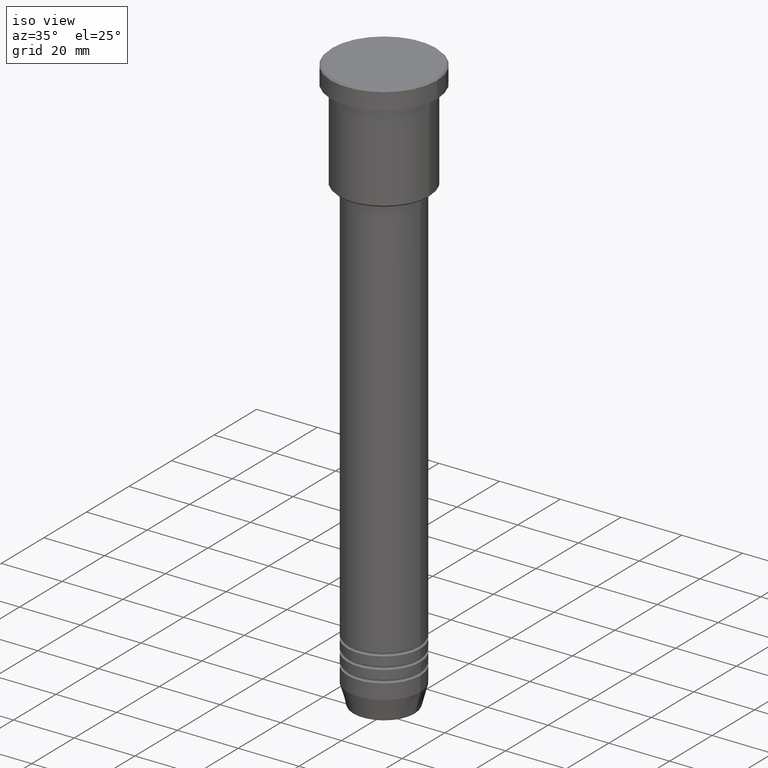
[diagram: clean part render]
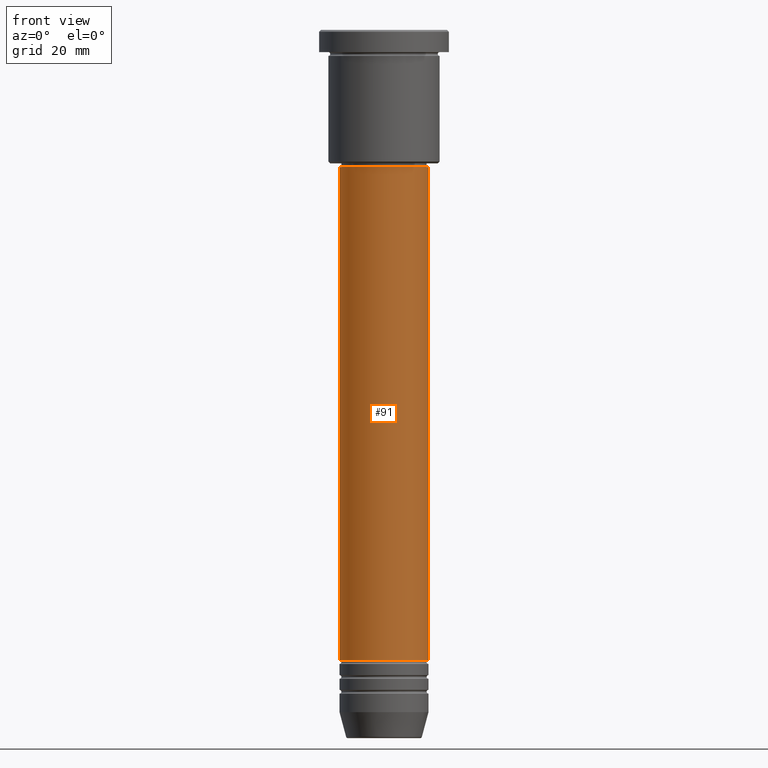
[diagram: tour spotlight — one face highlighted and labeled with its STEP entity id]
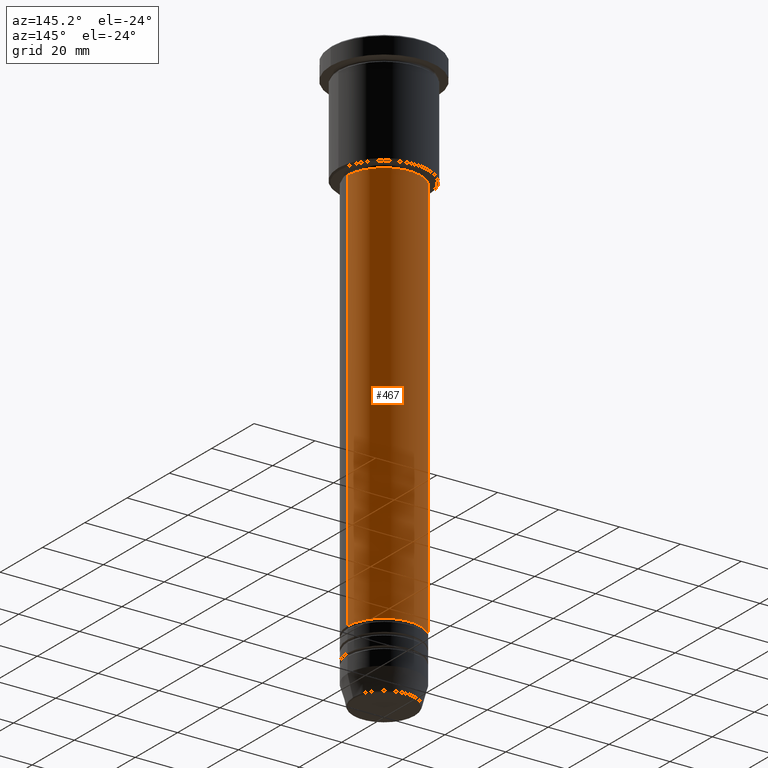
[diagram: tour spotlight — one face highlighted and labeled with its STEP entity id]
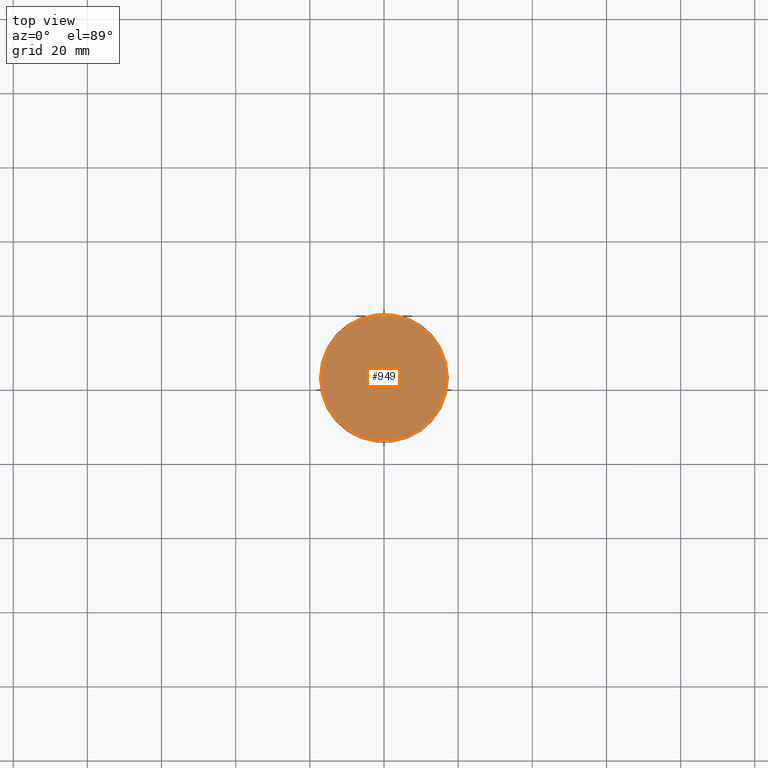
[diagram: tour spotlight — one face highlighted and labeled with its STEP entity id]
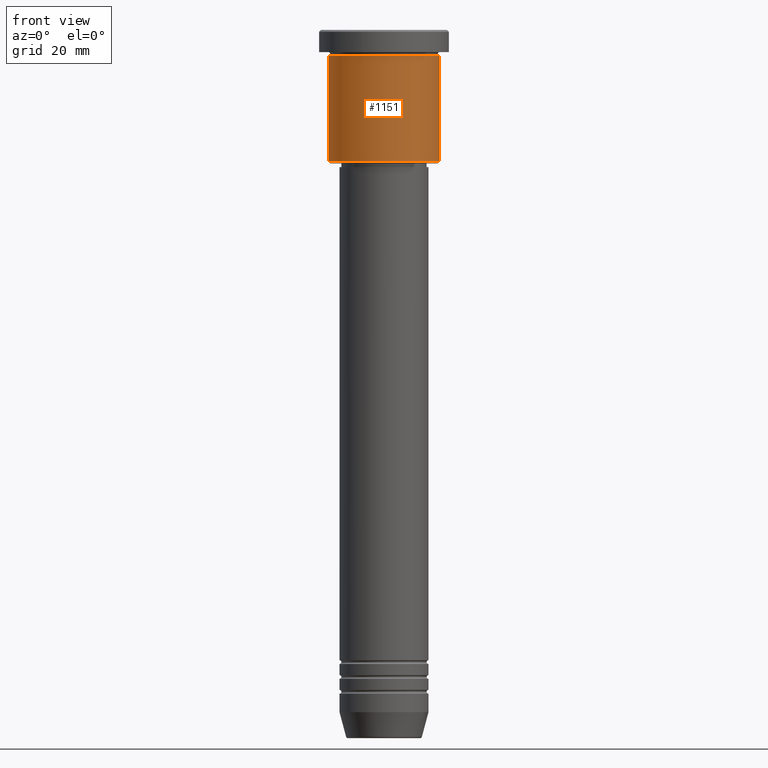
[diagram: tour spotlight — one face highlighted and labeled with its STEP entity id]
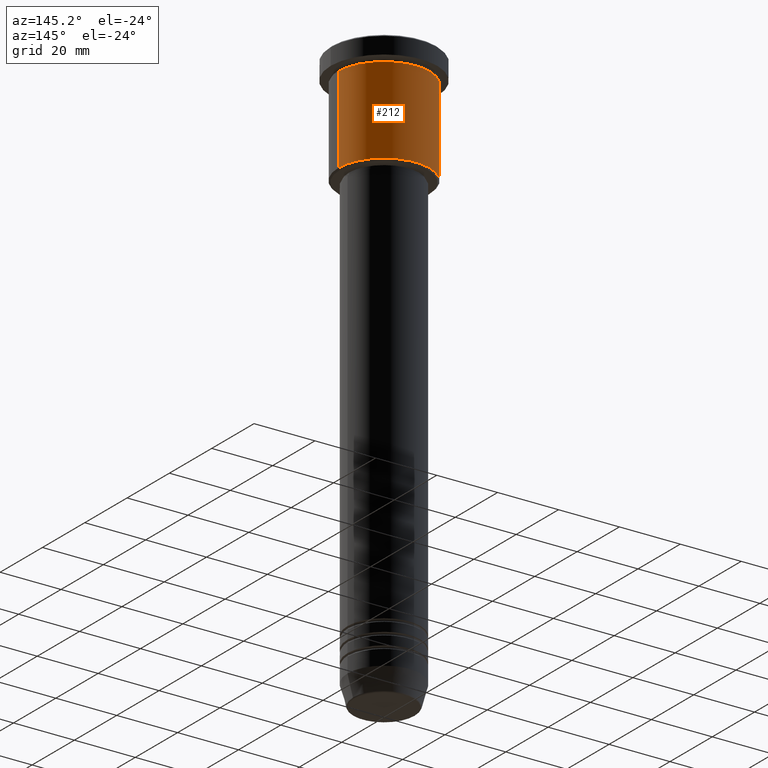
[diagram: tour spotlight — one face highlighted and labeled with its STEP entity id]
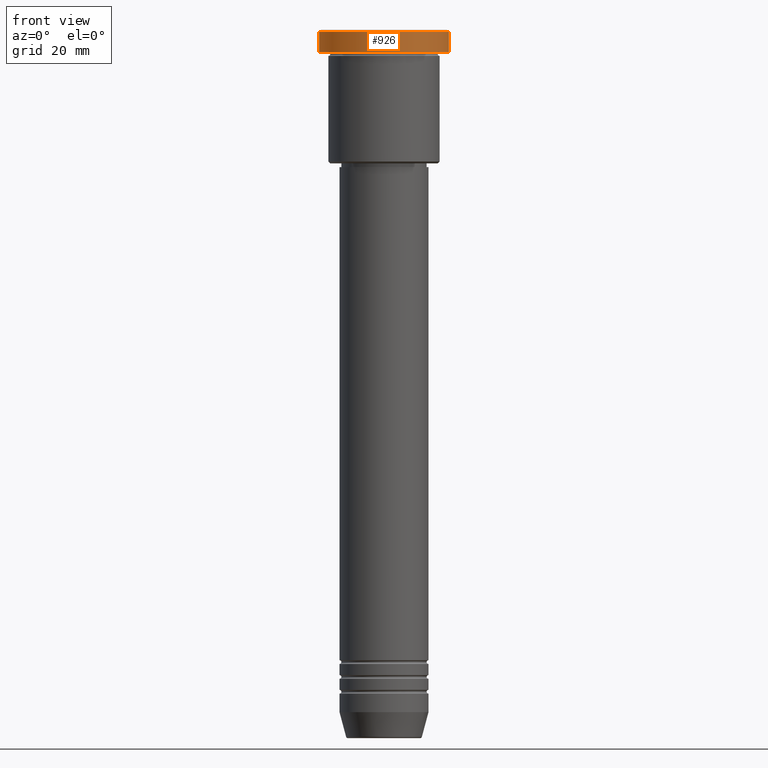
[diagram: tour spotlight — one face highlighted and labeled with its STEP entity id]
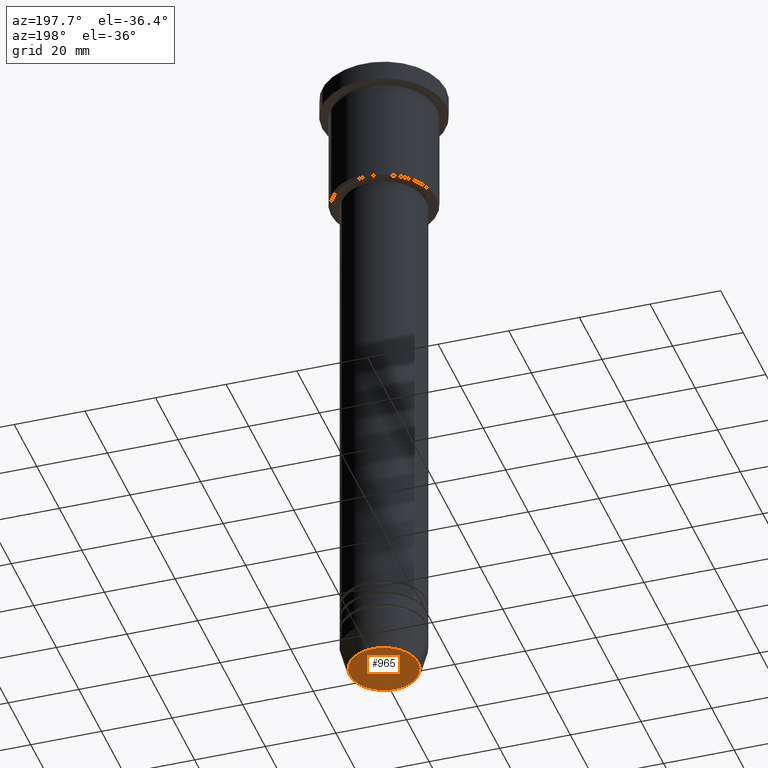
[diagram: tour spotlight — one face highlighted and labeled with its STEP entity id]
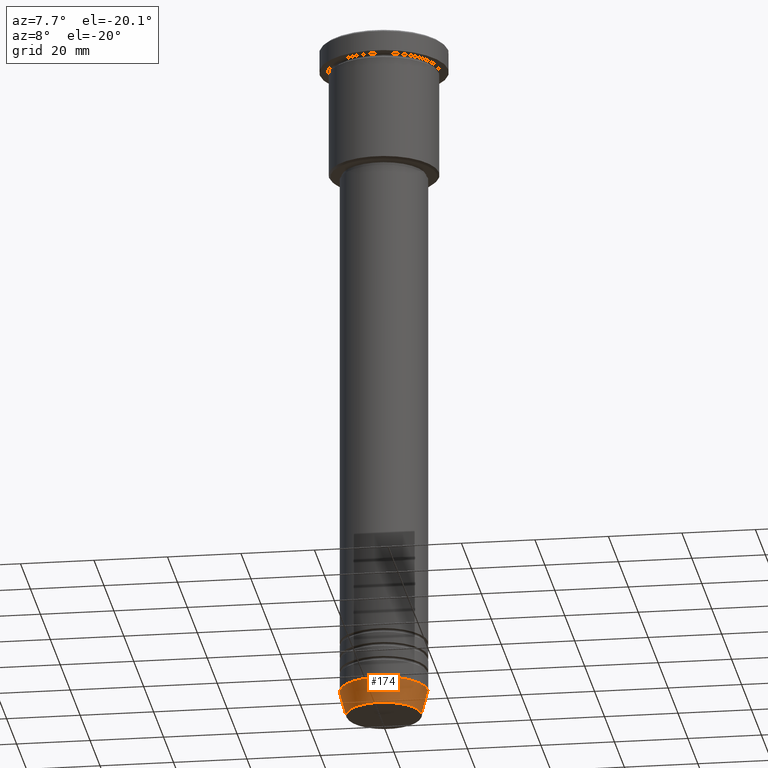
[diagram: tour spotlight — one face highlighted and labeled with its STEP entity id]
A machine part: a face-by-face anatomy tour. The part has 43 B-rep faces; the first image is the clean iso view, then the 8 largest visible faces are spotlighted one at a time (largest first), each with its STEP entity span.

Face 1 — front view, entity #91. In plain terms, the highlighted cylindrical surface (partial cylindrical patch) has radius 12 mm, axis along (-0, -0, 1).
Definition (entity closure, byte-faithful):
#15 = AXIS2_PLACEMENT_3D ( 'NONE', #577, #501, #488 ) ;
#39 = VERTEX_POINT ( 'NONE', #408 ) ;
#44 = CARTESIAN_POINT ( 'NONE',  ( 0.000000000000000000, 0.000000000000000000, -37.00000000000002842 ) ) ;
#79 = VECTOR ( 'NONE', #737, 1000.000000000000000 ) ;
#91 = ADVANCED_FACE ( 'NONE', ( #128 ), #235, .T. ) ;
#94 = DIRECTION ( 'NONE',  ( -0.000000000000000000, -0.000000000000000000, 1.000000000000000000 ) ) ;
#128 = FACE_OUTER_BOUND ( 'NONE', #750, .T. ) ;
#233 = VECTOR ( 'NONE', #94, 1000.000000000000000 ) ;
#235 = CYLINDRICAL_SURFACE ( 'NONE', #511, 12.00000000000000000 ) ;
#324 = EDGE_CURVE ( 'NONE', #39, #1139, #557, .T. ) ;
#380 = CARTESIAN_POINT ( 'NONE',  ( -12.00000000000000000, 1.469576158976823947E-15, 0.000000000000000000 ) ) ;
#408 = CARTESIAN_POINT ( 'NONE',  ( 12.00000000000000000, 0.000000000000000000, -169.9999999999999147 ) ) ;
#488 = DIRECTION ( 'NONE',  ( 1.000000000000000000, 0.000000000000000000, 0.000000000000000000 ) ) ;
#494 = CIRCLE ( 'NONE', #803, 12.00000000000000000 ) ;
#496 = DIRECTION ( 'NONE',  ( 1.000000000000000000, 0.000000000000000000, 0.000000000000000000 ) ) ;
#501 = DIRECTION ( 'NONE',  ( -0.000000000000000000, -0.000000000000000000, 1.000000000000000000 ) ) ;
#511 = AXIS2_PLACEMENT_3D ( 'NONE', #692, #843, #496 ) ;
#535 = CIRCLE ( 'NONE', #15, 12.00000000000000000 ) ;
#557 = LINE ( 'NONE', #1108, #233 ) ;
#559 = VERTEX_POINT ( 'NONE', #800 ) ;
#577 = CARTESIAN_POINT ( 'NONE',  ( 0.000000000000000000, 0.000000000000000000, -169.9999999999999147 ) ) ;
#646 = CARTESIAN_POINT ( 'NONE',  ( -12.00000000000000000, 1.469576158976823947E-15, -169.9999999999999147 ) ) ;
#692 = CARTESIAN_POINT ( 'NONE',  ( 0.000000000000000000, 0.000000000000000000, 0.000000000000000000 ) ) ;
#720 = CARTESIAN_POINT ( 'NONE',  ( 12.00000000000000000, 0.000000000000000000, -37.00000000000002842 ) ) ;
#734 = VERTEX_POINT ( 'NONE', #646 ) ;
#737 = DIRECTION ( 'NONE',  ( -0.000000000000000000, -0.000000000000000000, 1.000000000000000000 ) ) ;
#750 = EDGE_LOOP ( 'NONE', ( #821, #1173, #1075, #1150 ) ) ;
#800 = CARTESIAN_POINT ( 'NONE',  ( -12.00000000000000000, 1.469576158976823947E-15, -37.00000000000002842 ) ) ;
#803 = AXIS2_PLACEMENT_3D ( 'NONE', #44, #940, #1122 ) ;
#821 = ORIENTED_EDGE ( 'NONE', *, *, #868, .F. ) ;
#826 = LINE ( 'NONE', #380, #79 ) ;
#843 = DIRECTION ( 'NONE',  ( -0.000000000000000000, -0.000000000000000000, 1.000000000000000000 ) ) ;
#868 = EDGE_CURVE ( 'NONE', #734, #559, #826, .T. ) ;
#940 = DIRECTION ( 'NONE',  ( -0.000000000000000000, -0.000000000000000000, 1.000000000000000000 ) ) ;
#999 = EDGE_CURVE ( 'NONE', #734, #39, #535, .T. ) ;
#1037 = EDGE_CURVE ( 'NONE', #559, #1139, #494, .T. ) ;
#1075 = ORIENTED_EDGE ( 'NONE', *, *, #324, .T. ) ;
#1108 = CARTESIAN_POINT ( 'NONE',  ( 12.00000000000000000, 0.000000000000000000, 0.000000000000000000 ) ) ;
#1122 = DIRECTION ( 'NONE',  ( 1.000000000000000000, 0.000000000000000000, 0.000000000000000000 ) ) ;
#1139 = VERTEX_POINT ( 'NONE', #720 ) ;
#1150 = ORIENTED_EDGE ( 'NONE', *, *, #1037, .F. ) ;
#1173 = ORIENTED_EDGE ( 'NONE', *, *, #999, .T. ) ;

Face 2 — auxiliary view, entity #467. In plain terms, the highlighted cylindrical surface (partial cylindrical patch) has radius 12 mm, axis along (-0, -0, 1).
Definition (entity closure, byte-faithful):
#39 = VERTEX_POINT ( 'NONE', #408 ) ;
#43 = DIRECTION ( 'NONE',  ( 1.000000000000000000, 0.000000000000000000, 0.000000000000000000 ) ) ;
#79 = VECTOR ( 'NONE', #737, 1000.000000000000000 ) ;
#94 = DIRECTION ( 'NONE',  ( -0.000000000000000000, -0.000000000000000000, 1.000000000000000000 ) ) ;
#122 = CARTESIAN_POINT ( 'NONE',  ( 0.000000000000000000, 0.000000000000000000, 0.000000000000000000 ) ) ;
#192 = DIRECTION ( 'NONE',  ( -0.000000000000000000, -0.000000000000000000, 1.000000000000000000 ) ) ;
#233 = VECTOR ( 'NONE', #94, 1000.000000000000000 ) ;
#275 = AXIS2_PLACEMENT_3D ( 'NONE', #792, #1158, #981 ) ;
#324 = EDGE_CURVE ( 'NONE', #39, #1139, #557, .T. ) ;
#353 = CIRCLE ( 'NONE', #1127, 12.00000000000000000 ) ;
#372 = AXIS2_PLACEMENT_3D ( 'NONE', #122, #500, #43 ) ;
#380 = CARTESIAN_POINT ( 'NONE',  ( -12.00000000000000000, 1.469576158976823947E-15, 0.000000000000000000 ) ) ;
#405 = CIRCLE ( 'NONE', #275, 12.00000000000000000 ) ;
#408 = CARTESIAN_POINT ( 'NONE',  ( 12.00000000000000000, 0.000000000000000000, -169.9999999999999147 ) ) ;
#467 = ADVANCED_FACE ( 'NONE', ( #934 ), #676, .T. ) ;
#500 = DIRECTION ( 'NONE',  ( -0.000000000000000000, -0.000000000000000000, 1.000000000000000000 ) ) ;
#547 = DIRECTION ( 'NONE',  ( 1.000000000000000000, 0.000000000000000000, 0.000000000000000000 ) ) ;
#557 = LINE ( 'NONE', #1108, #233 ) ;
#559 = VERTEX_POINT ( 'NONE', #800 ) ;
#646 = CARTESIAN_POINT ( 'NONE',  ( -12.00000000000000000, 1.469576158976823947E-15, -169.9999999999999147 ) ) ;
#676 = CYLINDRICAL_SURFACE ( 'NONE', #372, 12.00000000000000000 ) ;
#678 = EDGE_CURVE ( 'NONE', #39, #734, #405, .T. ) ;
#684 = ORIENTED_EDGE ( 'NONE', *, *, #844, .F. ) ;
#695 = ORIENTED_EDGE ( 'NONE', *, *, #324, .F. ) ;
#720 = CARTESIAN_POINT ( 'NONE',  ( 12.00000000000000000, 0.000000000000000000, -37.00000000000002842 ) ) ;
#734 = VERTEX_POINT ( 'NONE', #646 ) ;
#737 = DIRECTION ( 'NONE',  ( -0.000000000000000000, -0.000000000000000000, 1.000000000000000000 ) ) ;
#792 = CARTESIAN_POINT ( 'NONE',  ( 0.000000000000000000, 0.000000000000000000, -169.9999999999999147 ) ) ;
#800 = CARTESIAN_POINT ( 'NONE',  ( -12.00000000000000000, 1.469576158976823947E-15, -37.00000000000002842 ) ) ;
#808 = ORIENTED_EDGE ( 'NONE', *, *, #678, .T. ) ;
#826 = LINE ( 'NONE', #380, #79 ) ;
#844 = EDGE_CURVE ( 'NONE', #1139, #559, #353, .T. ) ;
#868 = EDGE_CURVE ( 'NONE', #734, #559, #826, .T. ) ;
#873 = EDGE_LOOP ( 'NONE', ( #808, #914, #684, #695 ) ) ;
#907 = CARTESIAN_POINT ( 'NONE',  ( 0.000000000000000000, 0.000000000000000000, -37.00000000000002842 ) ) ;
#914 = ORIENTED_EDGE ( 'NONE', *, *, #868, .T. ) ;
#934 = FACE_OUTER_BOUND ( 'NONE', #873, .T. ) ;
#981 = DIRECTION ( 'NONE',  ( 1.000000000000000000, 0.000000000000000000, 0.000000000000000000 ) ) ;
#1108 = CARTESIAN_POINT ( 'NONE',  ( 12.00000000000000000, 0.000000000000000000, 0.000000000000000000 ) ) ;
#1127 = AXIS2_PLACEMENT_3D ( 'NONE', #907, #192, #547 ) ;
#1139 = VERTEX_POINT ( 'NONE', #720 ) ;
#1158 = DIRECTION ( 'NONE',  ( -0.000000000000000000, -0.000000000000000000, 1.000000000000000000 ) ) ;

Face 3 — top view, entity #949. In plain terms, the highlighted planar face has unit normal (0, -0, 1).
Definition (entity closure, byte-faithful):
#173 = ORIENTED_EDGE ( 'NONE', *, *, #884, .T. ) ;
#197 = AXIS2_PLACEMENT_3D ( 'NONE', #1176, #728, #659 ) ;
#214 = CIRCLE ( 'NONE', #612, 17.00000000000001421 ) ;
#302 = CARTESIAN_POINT ( 'NONE',  ( -17.00000000000001421, 0.000000000000000000, 0.000000000000000000 ) ) ;
#312 = AXIS2_PLACEMENT_3D ( 'NONE', #963, #1061, #1153 ) ;
#384 = CARTESIAN_POINT ( 'NONE',  ( 0.000000000000000000, 0.000000000000000000, 0.000000000000000000 ) ) ;
#387 = CIRCLE ( 'NONE', #312, 17.00000000000001421 ) ;
#550 = EDGE_CURVE ( 'NONE', #938, #942, #387, .T. ) ;
#612 = AXIS2_PLACEMENT_3D ( 'NONE', #384, #1104, #1011 ) ;
#659 = DIRECTION ( 'NONE',  ( 1.000000000000000000, 0.000000000000000000, 0.000000000000000000 ) ) ;
#705 = EDGE_LOOP ( 'NONE', ( #986, #173 ) ) ;
#728 = DIRECTION ( 'NONE',  ( 0.000000000000000000, -0.000000000000000000, 1.000000000000000000 ) ) ;
#884 = EDGE_CURVE ( 'NONE', #942, #938, #214, .T. ) ;
#919 = CARTESIAN_POINT ( 'NONE',  ( 17.00000000000001421, 2.112515728529185250E-15, 0.000000000000000000 ) ) ;
#938 = VERTEX_POINT ( 'NONE', #302 ) ;
#942 = VERTEX_POINT ( 'NONE', #919 ) ;
#949 = ADVANCED_FACE ( 'NONE', ( #1019 ), #1004, .T. ) ;
#963 = CARTESIAN_POINT ( 'NONE',  ( 0.000000000000000000, 0.000000000000000000, 0.000000000000000000 ) ) ;
#986 = ORIENTED_EDGE ( 'NONE', *, *, #550, .T. ) ;
#1004 = PLANE ( 'NONE',  #197 ) ;
#1011 = DIRECTION ( 'NONE',  ( 1.000000000000000000, 0.000000000000000000, 0.000000000000000000 ) ) ;
#1019 = FACE_OUTER_BOUND ( 'NONE', #705, .T. ) ;
#1061 = DIRECTION ( 'NONE',  ( -0.000000000000000000, -0.000000000000000000, 1.000000000000000000 ) ) ;
#1104 = DIRECTION ( 'NONE',  ( -0.000000000000000000, -0.000000000000000000, 1.000000000000000000 ) ) ;
#1153 = DIRECTION ( 'NONE',  ( 1.000000000000000000, 0.000000000000000000, 0.000000000000000000 ) ) ;
#1176 = CARTESIAN_POINT ( 'NONE',  ( 0.000000000000000000, 0.000000000000000000, 0.000000000000000000 ) ) ;

Face 4 — front view, entity #1151. In plain terms, the highlighted cylindrical surface (partial cylindrical patch) has radius 15 mm, axis along (-0, -0, 1).
Definition (entity closure, byte-faithful):
#68 = EDGE_CURVE ( 'NONE', #738, #1028, #1065, .T. ) ;
#107 = CARTESIAN_POINT ( 'NONE',  ( 0.000000000000000000, 0.000000000000000000, -35.50000000000002132 ) ) ;
#142 = ORIENTED_EDGE ( 'NONE', *, *, #68, .F. ) ;
#185 = AXIS2_PLACEMENT_3D ( 'NONE', #786, #801, #697 ) ;
#298 = LINE ( 'NONE', #912, #669 ) ;
#304 = EDGE_CURVE ( 'NONE', #1020, #529, #1107, .T. ) ;
#356 = DIRECTION ( 'NONE',  ( -0.000000000000000000, -0.000000000000000000, 1.000000000000000000 ) ) ;
#361 = CARTESIAN_POINT ( 'NONE',  ( -15.00000000000000000, 1.836970198721029589E-15, -6.999999999999995559 ) ) ;
#367 = DIRECTION ( 'NONE',  ( -0.000000000000000000, -0.000000000000000000, 1.000000000000000000 ) ) ;
#419 = AXIS2_PLACEMENT_3D ( 'NONE', #107, #367, #817 ) ;
#426 = ORIENTED_EDGE ( 'NONE', *, *, #849, .F. ) ;
#502 = DIRECTION ( 'NONE',  ( 1.000000000000000000, 0.000000000000000000, 0.000000000000000000 ) ) ;
#529 = VERTEX_POINT ( 'NONE', #771 ) ;
#534 = VECTOR ( 'NONE', #356, 1000.000000000000000 ) ;
#548 = AXIS2_PLACEMENT_3D ( 'NONE', #1118, #1138, #502 ) ;
#551 = ORIENTED_EDGE ( 'NONE', *, *, #304, .T. ) ;
#605 = LINE ( 'NONE', #973, #534 ) ;
#628 = EDGE_CURVE ( 'NONE', #529, #1028, #605, .T. ) ;
#629 = CYLINDRICAL_SURFACE ( 'NONE', #185, 15.00000000000000000 ) ;
#645 = ORIENTED_EDGE ( 'NONE', *, *, #628, .T. ) ;
#669 = VECTOR ( 'NONE', #924, 1000.000000000000000 ) ;
#677 = CARTESIAN_POINT ( 'NONE',  ( 15.00000000000000000, 0.000000000000000000, -6.999999999999995559 ) ) ;
#697 = DIRECTION ( 'NONE',  ( 1.000000000000000000, 0.000000000000000000, 0.000000000000000000 ) ) ;
#718 = EDGE_LOOP ( 'NONE', ( #426, #551, #645, #142 ) ) ;
#738 = VERTEX_POINT ( 'NONE', #361 ) ;
#771 = CARTESIAN_POINT ( 'NONE',  ( 15.00000000000000000, 0.000000000000000000, -35.50000000000002132 ) ) ;
#786 = CARTESIAN_POINT ( 'NONE',  ( 0.000000000000000000, 0.000000000000000000, 0.000000000000000000 ) ) ;
#801 = DIRECTION ( 'NONE',  ( -0.000000000000000000, -0.000000000000000000, 1.000000000000000000 ) ) ;
#806 = FACE_OUTER_BOUND ( 'NONE', #718, .T. ) ;
#817 = DIRECTION ( 'NONE',  ( -1.000000000000000000, 0.000000000000000000, 0.000000000000000000 ) ) ;
#849 = EDGE_CURVE ( 'NONE', #1020, #738, #298, .T. ) ;
#912 = CARTESIAN_POINT ( 'NONE',  ( -15.00000000000000000, 1.836970198721029589E-15, 0.000000000000000000 ) ) ;
#924 = DIRECTION ( 'NONE',  ( -0.000000000000000000, -0.000000000000000000, 1.000000000000000000 ) ) ;
#973 = CARTESIAN_POINT ( 'NONE',  ( 15.00000000000000000, 0.000000000000000000, 0.000000000000000000 ) ) ;
#1020 = VERTEX_POINT ( 'NONE', #1141 ) ;
#1028 = VERTEX_POINT ( 'NONE', #677 ) ;
#1065 = CIRCLE ( 'NONE', #548, 15.00000000000000000 ) ;
#1107 = CIRCLE ( 'NONE', #419, 15.00000000000000000 ) ;
#1118 = CARTESIAN_POINT ( 'NONE',  ( 0.000000000000000000, 0.000000000000000000, -6.999999999999995559 ) ) ;
#1138 = DIRECTION ( 'NONE',  ( -0.000000000000000000, -0.000000000000000000, 1.000000000000000000 ) ) ;
#1141 = CARTESIAN_POINT ( 'NONE',  ( -15.00000000000000000, 1.836970198721029589E-15, -35.50000000000002132 ) ) ;
#1151 = ADVANCED_FACE ( 'NONE', ( #806 ), #629, .T. ) ;

Face 5 — auxiliary view, entity #212. In plain terms, the highlighted cylindrical surface (partial cylindrical patch) has radius 15 mm, axis along (-0, -0, 1).
Definition (entity closure, byte-faithful):
#157 = CARTESIAN_POINT ( 'NONE',  ( 0.000000000000000000, 0.000000000000000000, 0.000000000000000000 ) ) ;
#181 = ORIENTED_EDGE ( 'NONE', *, *, #790, .F. ) ;
#212 = ADVANCED_FACE ( 'NONE', ( #781 ), #877, .T. ) ;
#294 = AXIS2_PLACEMENT_3D ( 'NONE', #157, #989, #442 ) ;
#298 = LINE ( 'NONE', #912, #669 ) ;
#334 = EDGE_LOOP ( 'NONE', ( #335, #472, #181, #617 ) ) ;
#335 = ORIENTED_EDGE ( 'NONE', *, *, #410, .T. ) ;
#343 = CARTESIAN_POINT ( 'NONE',  ( 0.000000000000000000, 0.000000000000000000, -6.999999999999995559 ) ) ;
#356 = DIRECTION ( 'NONE',  ( -0.000000000000000000, -0.000000000000000000, 1.000000000000000000 ) ) ;
#359 = DIRECTION ( 'NONE',  ( -0.000000000000000000, -0.000000000000000000, 1.000000000000000000 ) ) ;
#361 = CARTESIAN_POINT ( 'NONE',  ( -15.00000000000000000, 1.836970198721029589E-15, -6.999999999999995559 ) ) ;
#399 = DIRECTION ( 'NONE',  ( -1.000000000000000000, 0.000000000000000000, 0.000000000000000000 ) ) ;
#410 = EDGE_CURVE ( 'NONE', #529, #1020, #1010, .T. ) ;
#442 = DIRECTION ( 'NONE',  ( 1.000000000000000000, 0.000000000000000000, 0.000000000000000000 ) ) ;
#455 = CARTESIAN_POINT ( 'NONE',  ( 0.000000000000000000, 0.000000000000000000, -35.50000000000002132 ) ) ;
#472 = ORIENTED_EDGE ( 'NONE', *, *, #849, .T. ) ;
#514 = AXIS2_PLACEMENT_3D ( 'NONE', #343, #359, #903 ) ;
#529 = VERTEX_POINT ( 'NONE', #771 ) ;
#534 = VECTOR ( 'NONE', #356, 1000.000000000000000 ) ;
#568 = CIRCLE ( 'NONE', #514, 15.00000000000000000 ) ;
#605 = LINE ( 'NONE', #973, #534 ) ;
#617 = ORIENTED_EDGE ( 'NONE', *, *, #628, .F. ) ;
#628 = EDGE_CURVE ( 'NONE', #529, #1028, #605, .T. ) ;
#669 = VECTOR ( 'NONE', #924, 1000.000000000000000 ) ;
#677 = CARTESIAN_POINT ( 'NONE',  ( 15.00000000000000000, 0.000000000000000000, -6.999999999999995559 ) ) ;
#738 = VERTEX_POINT ( 'NONE', #361 ) ;
#771 = CARTESIAN_POINT ( 'NONE',  ( 15.00000000000000000, 0.000000000000000000, -35.50000000000002132 ) ) ;
#781 = FACE_OUTER_BOUND ( 'NONE', #334, .T. ) ;
#790 = EDGE_CURVE ( 'NONE', #1028, #738, #568, .T. ) ;
#846 = DIRECTION ( 'NONE',  ( -0.000000000000000000, -0.000000000000000000, 1.000000000000000000 ) ) ;
#849 = EDGE_CURVE ( 'NONE', #1020, #738, #298, .T. ) ;
#877 = CYLINDRICAL_SURFACE ( 'NONE', #294, 15.00000000000000000 ) ;
#903 = DIRECTION ( 'NONE',  ( 1.000000000000000000, 0.000000000000000000, 0.000000000000000000 ) ) ;
#912 = CARTESIAN_POINT ( 'NONE',  ( -15.00000000000000000, 1.836970198721029589E-15, 0.000000000000000000 ) ) ;
#924 = DIRECTION ( 'NONE',  ( -0.000000000000000000, -0.000000000000000000, 1.000000000000000000 ) ) ;
#930 = AXIS2_PLACEMENT_3D ( 'NONE', #455, #846, #399 ) ;
#973 = CARTESIAN_POINT ( 'NONE',  ( 15.00000000000000000, 0.000000000000000000, 0.000000000000000000 ) ) ;
#989 = DIRECTION ( 'NONE',  ( -0.000000000000000000, -0.000000000000000000, 1.000000000000000000 ) ) ;
#1010 = CIRCLE ( 'NONE', #930, 15.00000000000000000 ) ;
#1020 = VERTEX_POINT ( 'NONE', #1141 ) ;
#1028 = VERTEX_POINT ( 'NONE', #677 ) ;
#1141 = CARTESIAN_POINT ( 'NONE',  ( -15.00000000000000000, 1.836970198721029589E-15, -35.50000000000002132 ) ) ;

Face 6 — front view, entity #926. In plain terms, the highlighted cylindrical surface (partial cylindrical patch) has radius 17.5 mm, axis along (-0, -0, 1).
Definition (entity closure, byte-faithful):
#6 = CARTESIAN_POINT ( 'NONE',  ( 0.000000000000000000, 0.000000000000000000, -0.5000000000000003331 ) ) ;
#92 = ORIENTED_EDGE ( 'NONE', *, *, #415, .F. ) ;
#95 = DIRECTION ( 'NONE',  ( 1.000000000000000000, 0.000000000000000000, 0.000000000000000000 ) ) ;
#99 = CIRCLE ( 'NONE', #180, 17.50000000000000000 ) ;
#146 = ORIENTED_EDGE ( 'NONE', *, *, #156, .T. ) ;
#156 = EDGE_CURVE ( 'NONE', #892, #225, #1025, .T. ) ;
#180 = AXIS2_PLACEMENT_3D ( 'NONE', #6, #829, #199 ) ;
#190 = DIRECTION ( 'NONE',  ( -0.000000000000000000, -0.000000000000000000, 1.000000000000000000 ) ) ;
#199 = DIRECTION ( 'NONE',  ( 1.000000000000000000, 0.000000000000000000, 0.000000000000000000 ) ) ;
#205 = FACE_OUTER_BOUND ( 'NONE', #344, .T. ) ;
#225 = VERTEX_POINT ( 'NONE', #626 ) ;
#242 = ORIENTED_EDGE ( 'NONE', *, *, #373, .T. ) ;
#291 = CARTESIAN_POINT ( 'NONE',  ( -17.50000000000000000, 2.143131898507868248E-15, -5.999999999999995559 ) ) ;
#305 = DIRECTION ( 'NONE',  ( -0.000000000000000000, -0.000000000000000000, 1.000000000000000000 ) ) ;
#344 = EDGE_LOOP ( 'NONE', ( #92, #146, #242, #1105 ) ) ;
#373 = EDGE_CURVE ( 'NONE', #225, #681, #923, .T. ) ;
#383 = EDGE_CURVE ( 'NONE', #681, #609, #99, .T. ) ;
#415 = EDGE_CURVE ( 'NONE', #892, #609, #576, .T. ) ;
#471 = CYLINDRICAL_SURFACE ( 'NONE', #729, 17.50000000000000000 ) ;
#532 = VECTOR ( 'NONE', #561, 1000.000000000000000 ) ;
#561 = DIRECTION ( 'NONE',  ( -0.000000000000000000, -0.000000000000000000, 1.000000000000000000 ) ) ;
#573 = CARTESIAN_POINT ( 'NONE',  ( 0.000000000000000000, 0.000000000000000000, -5.999999999999995559 ) ) ;
#576 = LINE ( 'NONE', #663, #760 ) ;
#609 = VERTEX_POINT ( 'NONE', #707 ) ;
#626 = CARTESIAN_POINT ( 'NONE',  ( 17.50000000000000000, 0.000000000000000000, -5.999999999999995559 ) ) ;
#663 = CARTESIAN_POINT ( 'NONE',  ( -17.50000000000000000, 2.143131898507868248E-15, 0.000000000000000000 ) ) ;
#681 = VERTEX_POINT ( 'NONE', #814 ) ;
#707 = CARTESIAN_POINT ( 'NONE',  ( -17.50000000000000000, 2.143131898507868248E-15, -0.5000000000000003331 ) ) ;
#725 = AXIS2_PLACEMENT_3D ( 'NONE', #573, #937, #946 ) ;
#729 = AXIS2_PLACEMENT_3D ( 'NONE', #748, #190, #95 ) ;
#748 = CARTESIAN_POINT ( 'NONE',  ( 0.000000000000000000, 0.000000000000000000, 0.000000000000000000 ) ) ;
#760 = VECTOR ( 'NONE', #305, 1000.000000000000000 ) ;
#814 = CARTESIAN_POINT ( 'NONE',  ( 17.50000000000000000, 0.000000000000000000, -0.5000000000000003331 ) ) ;
#825 = CARTESIAN_POINT ( 'NONE',  ( 17.50000000000000000, 0.000000000000000000, 0.000000000000000000 ) ) ;
#829 = DIRECTION ( 'NONE',  ( 0.000000000000000000, 0.000000000000000000, -1.000000000000000000 ) ) ;
#892 = VERTEX_POINT ( 'NONE', #291 ) ;
#923 = LINE ( 'NONE', #825, #532 ) ;
#926 = ADVANCED_FACE ( 'NONE', ( #205 ), #471, .T. ) ;
#937 = DIRECTION ( 'NONE',  ( -0.000000000000000000, -0.000000000000000000, 1.000000000000000000 ) ) ;
#946 = DIRECTION ( 'NONE',  ( 1.000000000000000000, 0.000000000000000000, 0.000000000000000000 ) ) ;
#1025 = CIRCLE ( 'NONE', #725, 17.50000000000000000 ) ;
#1105 = ORIENTED_EDGE ( 'NONE', *, *, #383, .T. ) ;

Face 7 — auxiliary view, entity #965. In plain terms, the highlighted planar face has unit normal (0, -0, 1).
Definition (entity closure, byte-faithful):
#10 = CARTESIAN_POINT ( 'NONE',  ( -9.740692158992658278, 1.222463696683474999E-15, -191.0000000000000000 ) ) ;
#80 = EDGE_CURVE ( 'NONE', #865, #623, #132, .T. ) ;
#132 = CIRCLE ( 'NONE', #797, 9.740692158992658278 ) ;
#176 = CARTESIAN_POINT ( 'NONE',  ( 9.740692158992658278, 0.000000000000000000, -191.0000000000000000 ) ) ;
#256 = AXIS2_PLACEMENT_3D ( 'NONE', #819, #740, #1110 ) ;
#267 = DIRECTION ( 'NONE',  ( 0.000000000000000000, 0.000000000000000000, -1.000000000000000000 ) ) ;
#286 = PLANE ( 'NONE',  #256 ) ;
#292 = EDGE_CURVE ( 'NONE', #623, #865, #871, .T. ) ;
#311 = EDGE_LOOP ( 'NONE', ( #453, #518 ) ) ;
#331 = CARTESIAN_POINT ( 'NONE',  ( 0.000000000000000000, 0.000000000000000000, -191.0000000000000000 ) ) ;
#451 = DIRECTION ( 'NONE',  ( 1.000000000000000000, 0.000000000000000000, 0.000000000000000000 ) ) ;
#453 = ORIENTED_EDGE ( 'NONE', *, *, #292, .T. ) ;
#461 = AXIS2_PLACEMENT_3D ( 'NONE', #1079, #267, #451 ) ;
#518 = ORIENTED_EDGE ( 'NONE', *, *, #80, .T. ) ;
#623 = VERTEX_POINT ( 'NONE', #176 ) ;
#740 = DIRECTION ( 'NONE',  ( 0.000000000000000000, -0.000000000000000000, 1.000000000000000000 ) ) ;
#797 = AXIS2_PLACEMENT_3D ( 'NONE', #331, #1053, #853 ) ;
#819 = CARTESIAN_POINT ( 'NONE',  ( 0.000000000000000000, 0.000000000000000000, -191.0000000000000000 ) ) ;
#853 = DIRECTION ( 'NONE',  ( 1.000000000000000000, 0.000000000000000000, 0.000000000000000000 ) ) ;
#865 = VERTEX_POINT ( 'NONE', #10 ) ;
#871 = CIRCLE ( 'NONE', #461, 9.740692158992658278 ) ;
#965 = ADVANCED_FACE ( 'NONE', ( #1094 ), #286, .F. ) ;
#1053 = DIRECTION ( 'NONE',  ( 0.000000000000000000, 0.000000000000000000, -1.000000000000000000 ) ) ;
#1079 = CARTESIAN_POINT ( 'NONE',  ( 0.000000000000000000, 0.000000000000000000, -191.0000000000000000 ) ) ;
#1094 = FACE_OUTER_BOUND ( 'NONE', #311, .T. ) ;
#1110 = DIRECTION ( 'NONE',  ( 1.000000000000000000, 0.000000000000000000, 0.000000000000000000 ) ) ;

Face 8 — auxiliary view, entity #174. In plain terms, the highlighted conical surface has half-angle 15 deg.
Definition (entity closure, byte-faithful):
#29 = EDGE_CURVE ( 'NONE', #169, #152, #1178, .T. ) ;
#31 = CARTESIAN_POINT ( 'NONE',  ( 10.22365507213719127, 0.000000000000000000, -190.6294095225512422 ) ) ;
#74 = AXIS2_PLACEMENT_3D ( 'NONE', #201, #1114, #920 ) ;
#152 = VERTEX_POINT ( 'NONE', #753 ) ;
#154 = DIRECTION ( 'NONE',  ( -0.000000000000000000, -0.000000000000000000, 1.000000000000000000 ) ) ;
#158 = VECTOR ( 'NONE', #983, 1000.000000000000000 ) ;
#169 = VERTEX_POINT ( 'NONE', #864 ) ;
#174 = ADVANCED_FACE ( 'NONE', ( #674 ), #194, .T. ) ;
#194 = CONICAL_SURFACE ( 'NONE', #474, 12.00000000000000000, 0.2617993877991500740 ) ;
#201 = CARTESIAN_POINT ( 'NONE',  ( 0.000000000000000000, 0.000000000000000000, -184.0000000000000000 ) ) ;
#202 = EDGE_CURVE ( 'NONE', #1049, #152, #416, .T. ) ;
#238 = EDGE_CURVE ( 'NONE', #925, #169, #520, .T. ) ;
#320 = ORIENTED_EDGE ( 'NONE', *, *, #545, .T. ) ;
#360 = ORIENTED_EDGE ( 'NONE', *, *, #29, .F. ) ;
#401 = DIRECTION ( 'NONE',  ( -0.000000000000000000, -0.000000000000000000, 1.000000000000000000 ) ) ;
#402 = ORIENTED_EDGE ( 'NONE', *, *, #238, .F. ) ;
#411 = CARTESIAN_POINT ( 'NONE',  ( 0.000000000000000000, 0.000000000000000000, -184.0000000000000000 ) ) ;
#416 = LINE ( 'NONE', #773, #910 ) ;
#435 = CARTESIAN_POINT ( 'NONE',  ( -12.00000000000000000, 1.469576158976823947E-15, -184.0000000000000000 ) ) ;
#437 = EDGE_LOOP ( 'NONE', ( #402, #320, #943, #360 ) ) ;
#440 = DIRECTION ( 'NONE',  ( 1.000000000000000000, 0.000000000000000000, 0.000000000000000000 ) ) ;
#474 = AXIS2_PLACEMENT_3D ( 'NONE', #411, #401, #769 ) ;
#520 = LINE ( 'NONE', #435, #158 ) ;
#530 = CARTESIAN_POINT ( 'NONE',  ( 0.000000000000000000, 0.000000000000000000, -190.6294095225512422 ) ) ;
#545 = EDGE_CURVE ( 'NONE', #925, #1049, #1026, .T. ) ;
#558 = CARTESIAN_POINT ( 'NONE',  ( -10.22365507213719127, 1.360806402472382744E-15, -190.6294095225512422 ) ) ;
#674 = FACE_OUTER_BOUND ( 'NONE', #437, .T. ) ;
#753 = CARTESIAN_POINT ( 'NONE',  ( 12.00000000000000000, 0.000000000000000000, -184.0000000000000000 ) ) ;
#769 = DIRECTION ( 'NONE',  ( 1.000000000000000000, 0.000000000000000000, 0.000000000000000000 ) ) ;
#773 = CARTESIAN_POINT ( 'NONE',  ( 12.00000000000000000, 0.000000000000000000, -184.0000000000000000 ) ) ;
#777 = AXIS2_PLACEMENT_3D ( 'NONE', #530, #154, #440 ) ;
#864 = CARTESIAN_POINT ( 'NONE',  ( -12.00000000000000000, 1.469576158976823947E-15, -184.0000000000000000 ) ) ;
#910 = VECTOR ( 'NONE', #1084, 1000.000000000000000 ) ;
#920 = DIRECTION ( 'NONE',  ( 1.000000000000000000, 0.000000000000000000, 0.000000000000000000 ) ) ;
#925 = VERTEX_POINT ( 'NONE', #558 ) ;
#943 = ORIENTED_EDGE ( 'NONE', *, *, #202, .T. ) ;
#983 = DIRECTION ( 'NONE',  ( -0.2588190451025213501, 3.169619151431772337E-17, 0.9659258262890680902 ) ) ;
#1026 = CIRCLE ( 'NONE', #777, 10.22365507213719127 ) ;
#1049 = VERTEX_POINT ( 'NONE', #31 ) ;
#1084 = DIRECTION ( 'NONE',  ( 0.2588190451025213501, 0.000000000000000000, 0.9659258262890680902 ) ) ;
#1114 = DIRECTION ( 'NONE',  ( -0.000000000000000000, -0.000000000000000000, 1.000000000000000000 ) ) ;
#1178 = CIRCLE ( 'NONE', #74, 12.00000000000000000 ) ;